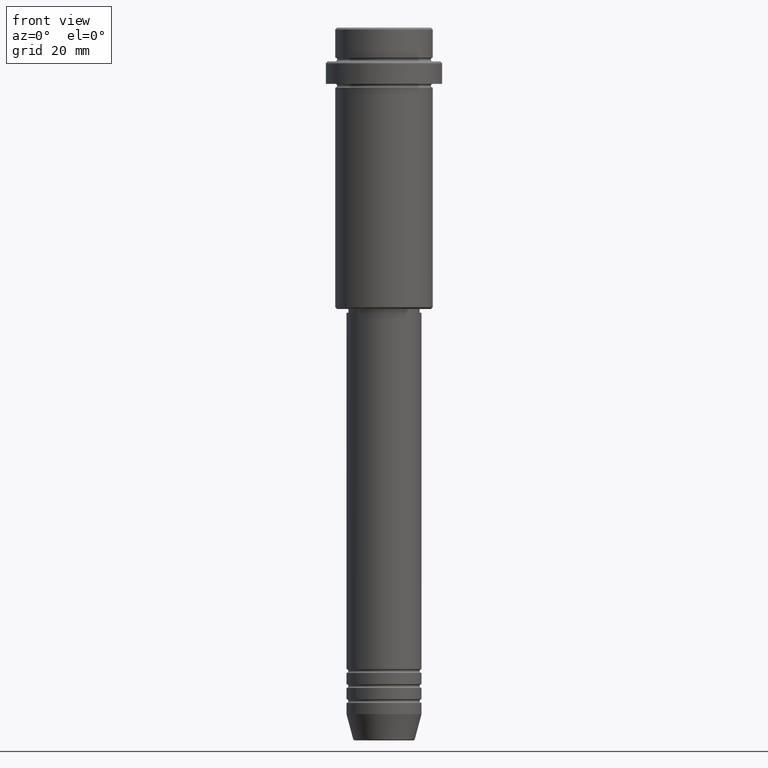
[diagram: clean part render]
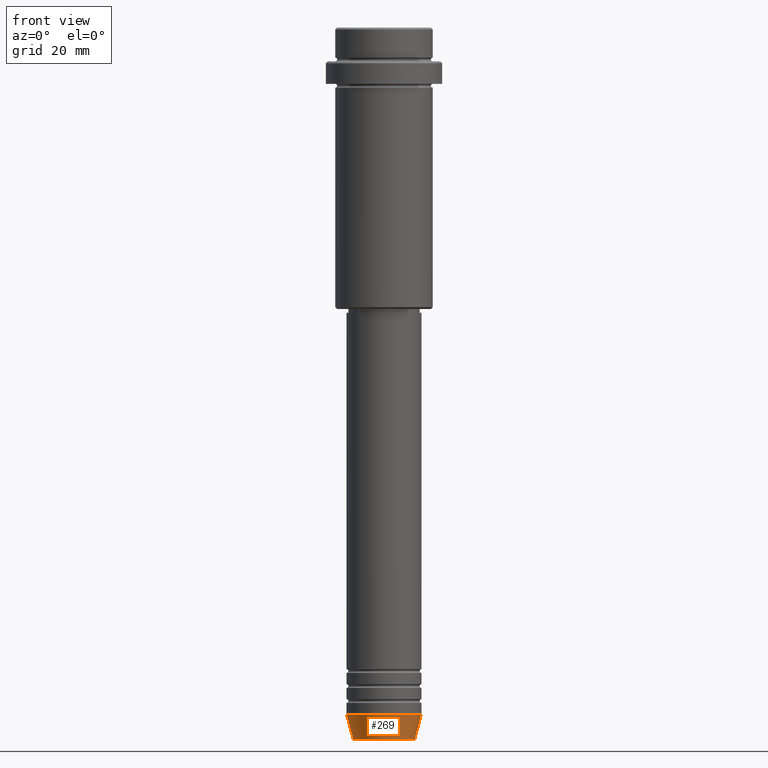
[diagram: same view with one face highlighted and labeled with its STEP entity id]
A machine part, front view. The second image highlights one B-rep face of the part: STEP entity #269.
In plain terms, the highlighted conical surface has half-angle 15 deg.
Its self-contained STEP definition (entity closure, byte-faithful):
#44 = DIRECTION ( 'NONE',  ( -0.000000000000000000, -0.000000000000000000, 1.000000000000000000 ) ) ;
#55 = AXIS2_PLACEMENT_3D ( 'NONE', #484, #67, #518 ) ;
#67 = DIRECTION ( 'NONE',  ( -0.000000000000000000, -0.000000000000000000, 1.000000000000000000 ) ) ;
#134 = VERTEX_POINT ( 'NONE', #444 ) ;
#176 = AXIS2_PLACEMENT_3D ( 'NONE', #827, #44, #1127 ) ;
#257 = VERTEX_POINT ( 'NONE', #700 ) ;
#269 = ADVANCED_FACE ( 'NONE', ( #509 ), #569, .T. ) ;
#323 = VERTEX_POINT ( 'NONE', #825 ) ;
#337 = CIRCLE ( 'NONE', #531, 10.00000000000000000 ) ;
#347 = EDGE_CURVE ( 'NONE', #323, #134, #1221, .T. ) ;
#434 = DIRECTION ( 'NONE',  ( 0.2588190451025213501, 0.000000000000000000, 0.9659258262890680902 ) ) ;
#444 = CARTESIAN_POINT ( 'NONE',  ( -10.00000000000000000, 1.224646799147353256E-15, -183.0000000000000000 ) ) ;
#467 = EDGE_CURVE ( 'NONE', #1099, #257, #1388, .T. ) ;
#484 = CARTESIAN_POINT ( 'NONE',  ( 0.000000000000000000, 0.000000000000000000, -183.0000000000000000 ) ) ;
#509 = FACE_OUTER_BOUND ( 'NONE', #1369, .T. ) ;
#518 = DIRECTION ( 'NONE',  ( 1.000000000000000000, 0.000000000000000000, 0.000000000000000000 ) ) ;
#520 = CARTESIAN_POINT ( 'NONE',  ( -10.00000000000000000, 1.224646799147353256E-15, -183.0000000000000000 ) ) ;
#531 = AXIS2_PLACEMENT_3D ( 'NONE', #1108, #1325, #1113 ) ;
#569 = CONICAL_SURFACE ( 'NONE', #55, 10.00000000000000000, 0.2617993877991500740 ) ;
#594 = CIRCLE ( 'NONE', #176, 8.223655072137191269 ) ;
#681 = VECTOR ( 'NONE', #434, 1000.000000000000000 ) ;
#700 = CARTESIAN_POINT ( 'NONE',  ( 10.00000000000000000, 0.000000000000000000, -183.0000000000000000 ) ) ;
#765 = EDGE_CURVE ( 'NONE', #134, #257, #337, .T. ) ;
#806 = ORIENTED_EDGE ( 'NONE', *, *, #1385, .T. ) ;
#825 = CARTESIAN_POINT ( 'NONE',  ( -8.223655072137191269, 1.115877042642912054E-15, -189.6294095225512422 ) ) ;
#827 = CARTESIAN_POINT ( 'NONE',  ( 0.000000000000000000, 0.000000000000000000, -189.6294095225512422 ) ) ;
#841 = DIRECTION ( 'NONE',  ( -0.2588190451025213501, 3.169619151431772337E-17, 0.9659258262890680902 ) ) ;
#980 = ORIENTED_EDGE ( 'NONE', *, *, #467, .T. ) ;
#1099 = VERTEX_POINT ( 'NONE', #1190 ) ;
#1108 = CARTESIAN_POINT ( 'NONE',  ( 0.000000000000000000, 0.000000000000000000, -183.0000000000000000 ) ) ;
#1113 = DIRECTION ( 'NONE',  ( 1.000000000000000000, 0.000000000000000000, 0.000000000000000000 ) ) ;
#1127 = DIRECTION ( 'NONE',  ( 1.000000000000000000, 0.000000000000000000, 0.000000000000000000 ) ) ;
#1169 = ORIENTED_EDGE ( 'NONE', *, *, #347, .F. ) ;
#1190 = CARTESIAN_POINT ( 'NONE',  ( 8.223655072137191269, 0.000000000000000000, -189.6294095225512422 ) ) ;
#1197 = CARTESIAN_POINT ( 'NONE',  ( 10.00000000000000000, 0.000000000000000000, -183.0000000000000000 ) ) ;
#1221 = LINE ( 'NONE', #520, #1274 ) ;
#1274 = VECTOR ( 'NONE', #841, 1000.000000000000000 ) ;
#1283 = ORIENTED_EDGE ( 'NONE', *, *, #765, .F. ) ;
#1325 = DIRECTION ( 'NONE',  ( -0.000000000000000000, -0.000000000000000000, 1.000000000000000000 ) ) ;
#1369 = EDGE_LOOP ( 'NONE', ( #1169, #806, #980, #1283 ) ) ;
#1385 = EDGE_CURVE ( 'NONE', #323, #1099, #594, .T. ) ;
#1388 = LINE ( 'NONE', #1197, #681 ) ;